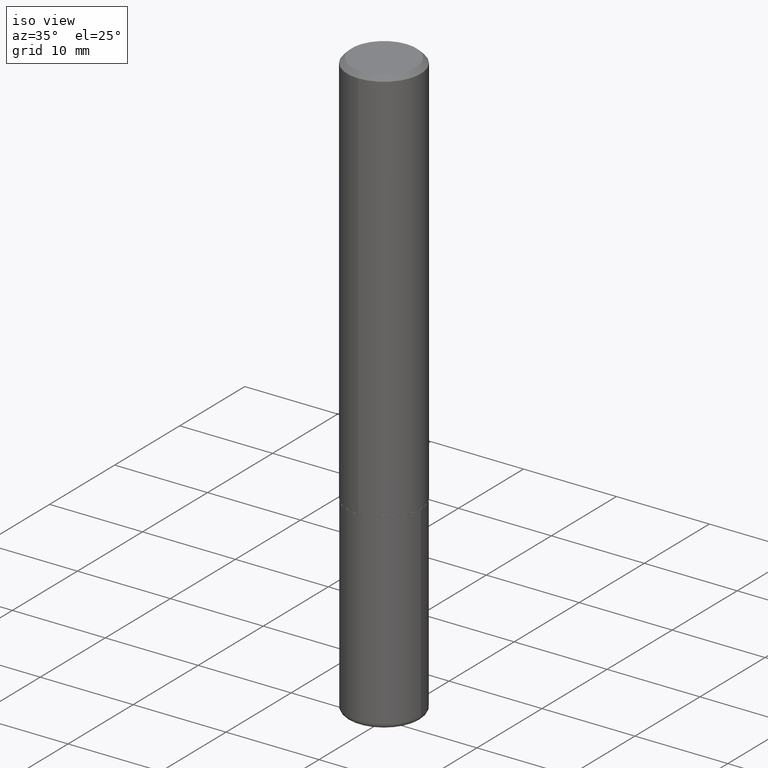
[diagram: clean part render]
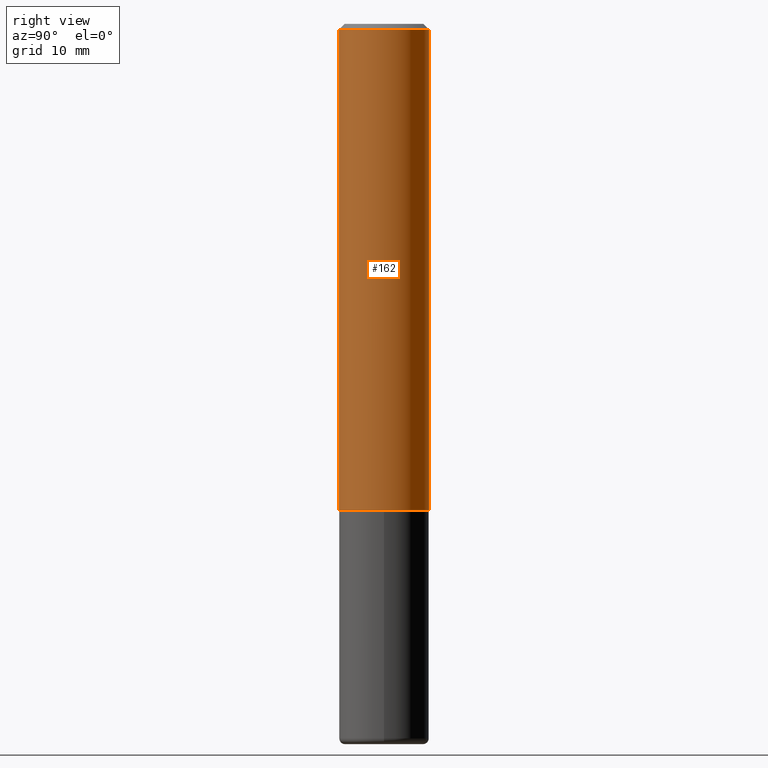
[diagram: tour spotlight — one face highlighted and labeled with its STEP entity id]
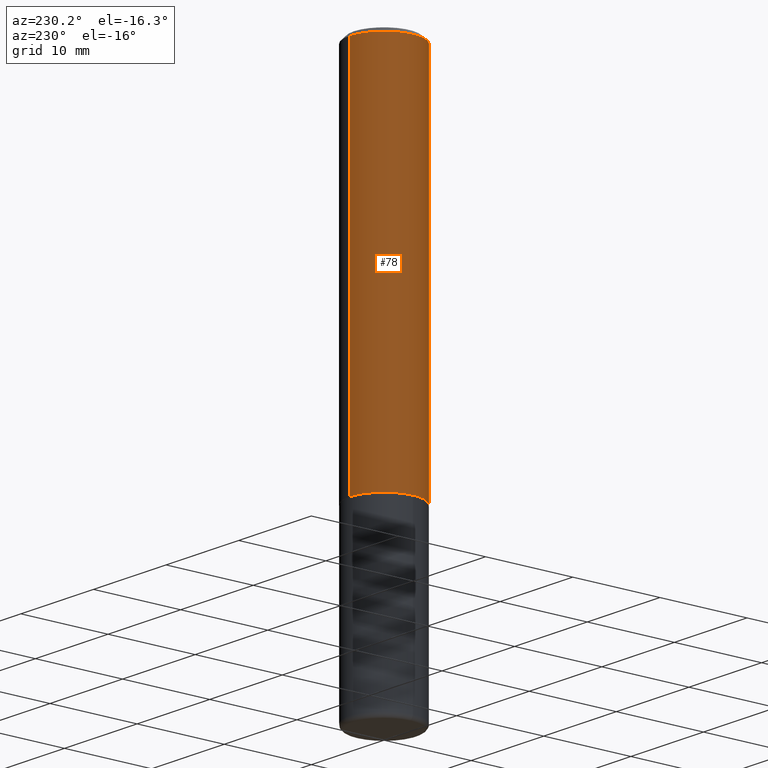
[diagram: tour spotlight — one face highlighted and labeled with its STEP entity id]
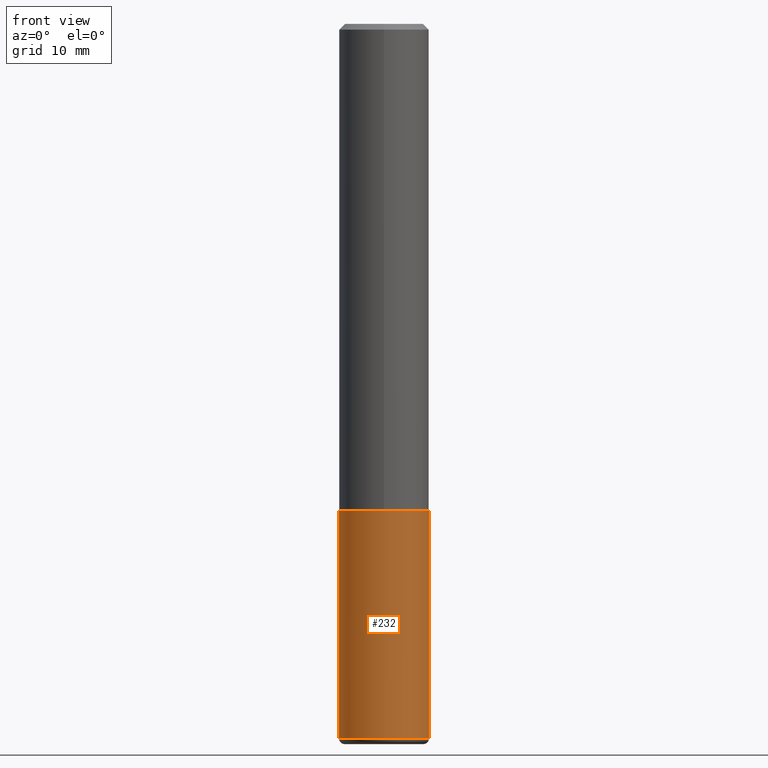
[diagram: tour spotlight — one face highlighted and labeled with its STEP entity id]
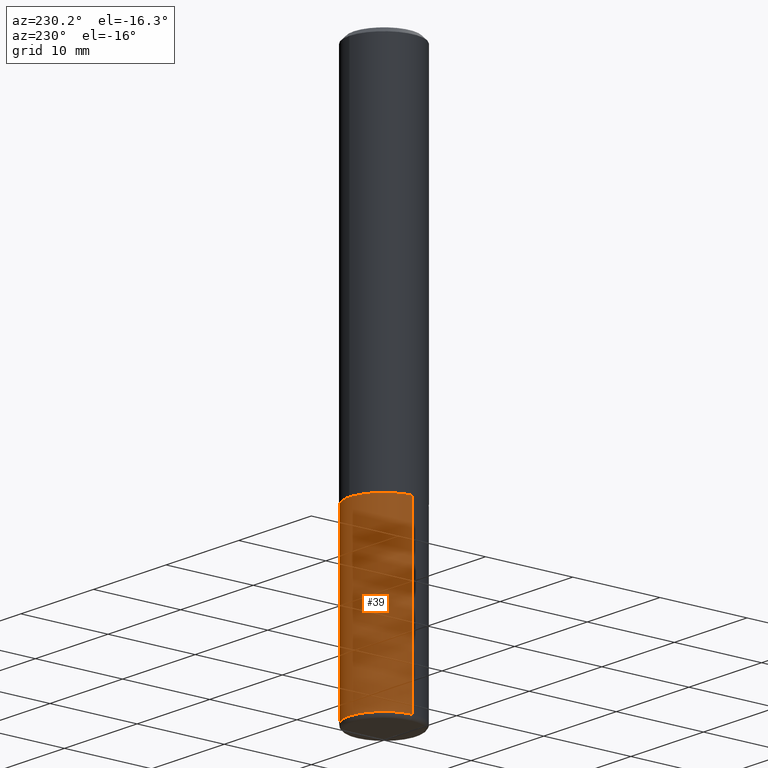
[diagram: tour spotlight — one face highlighted and labeled with its STEP entity id]
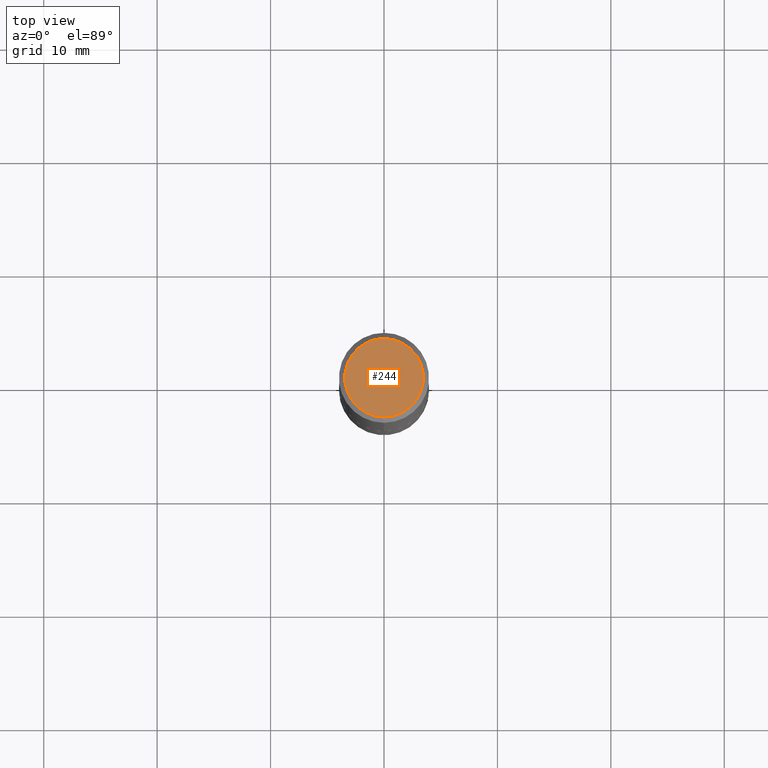
[diagram: tour spotlight — one face highlighted and labeled with its STEP entity id]
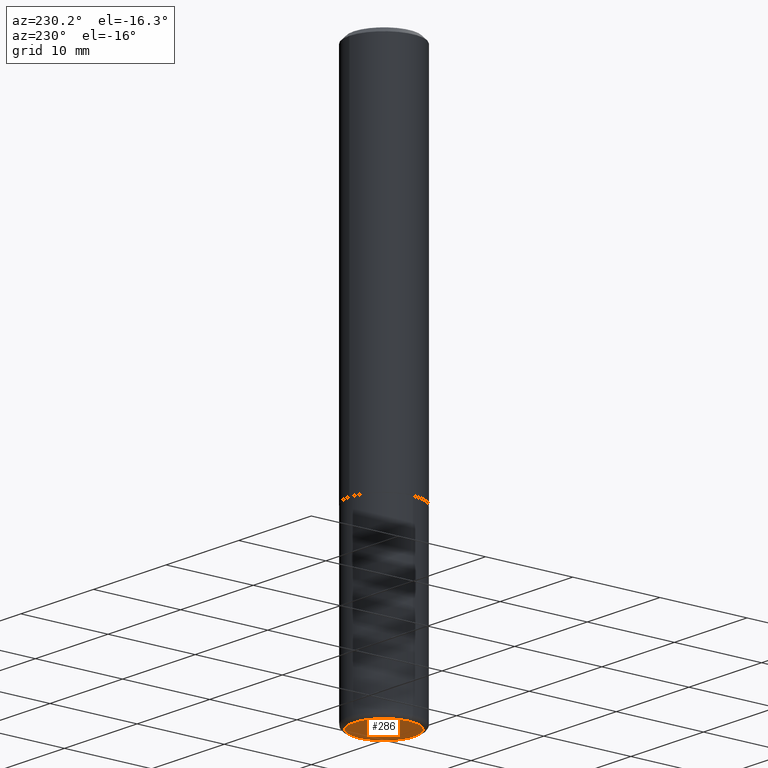
[diagram: tour spotlight — one face highlighted and labeled with its STEP entity id]
A machine part: a face-by-face anatomy tour. The part has 14 B-rep faces; the first image is the clean iso view, then the 6 largest visible faces are spotlighted one at a time (largest first), each with its STEP entity span.

Face 1 — right view, entity #162. In plain terms, the highlighted cylindrical surface (partial cylindrical patch) has radius 3.9688 mm, axis along (-0, 0, 1).
Definition (entity closure, byte-faithful):
#1 = FACE_OUTER_BOUND ( 'NONE', #315, .T. ) ;
#3 = EDGE_CURVE ( 'NONE', #94, #356, #109, .T. ) ;
#9 = DIRECTION ( 'NONE',  ( -2.445045230849958565E-29, 3.492087922831532098E-15, 1.000000000000000000 ) ) ;
#17 = DIRECTION ( 'NONE',  ( -6.982962677686265922E-15, -1.000000000000000000, 3.496765431890251792E-15 ) ) ;
#37 = VECTOR ( 'NONE', #339, 39.37007874015748143 ) ;
#43 = CARTESIAN_POINT ( 'NONE',  ( 1.110223024625157132E-15, 0.1562500000000001110, -5.456387379424272725E-16 ) ) ;
#51 = EDGE_CURVE ( 'NONE', #354, #94, #130, .T. ) ;
#54 = AXIS2_PLACEMENT_3D ( 'NONE', #335, #304, #17 ) ;
#57 = DIRECTION ( 'NONE',  ( -2.445045230849958565E-29, 3.492087922831531704E-15, 1.000000000000000000 ) ) ;
#86 = EDGE_CURVE ( 'NONE', #354, #205, #404, .T. ) ;
#88 = VECTOR ( 'NONE', #9, 39.37007874015748143 ) ;
#94 = VERTEX_POINT ( 'NONE', #398 ) ;
#104 = EDGE_CURVE ( 'NONE', #205, #356, #183, .T. ) ;
#109 = LINE ( 'NONE', #43, #37 ) ;
#130 = CIRCLE ( 'NONE', #54, 0.1562500000000002220 ) ;
#141 = ORIENTED_EDGE ( 'NONE', *, *, #51, .T. ) ;
#162 = ADVANCED_FACE ( 'NONE', ( #1 ), #284, .T. ) ;
#183 = CIRCLE ( 'NONE', #362, 0.1562500000000000000 ) ;
#198 = ORIENTED_EDGE ( 'NONE', *, *, #86, .F. ) ;
#205 = VERTEX_POINT ( 'NONE', #387 ) ;
#208 = ORIENTED_EDGE ( 'NONE', *, *, #104, .F. ) ;
#219 = DIRECTION ( 'NONE',  ( -2.445045230849958565E-29, 3.492087922831531704E-15, 1.000000000000000000 ) ) ;
#238 = CARTESIAN_POINT ( 'NONE',  ( 1.091087918388479568E-15, 0.1562499999999999445, -0.02000000000000057981 ) ) ;
#249 = CARTESIAN_POINT ( 'NONE',  ( -1.091087918388439336E-15, -0.1562500000000061062, -1.686999999999999611 ) ) ;
#264 = CARTESIAN_POINT ( 'NONE',  ( -1.091087918388479765E-15, -0.1562500000000001110, 5.456387379424272725E-16 ) ) ;
#284 = CYLINDRICAL_SURFACE ( 'NONE', #397, 0.1562500000000001110 ) ;
#292 = DIRECTION ( 'NONE',  ( -6.982962677686265133E-15, -1.000000000000000000, 3.496765431890256920E-15 ) ) ;
#304 = DIRECTION ( 'NONE',  ( -2.445045230849958565E-29, 3.492087922831531704E-15, 1.000000000000000000 ) ) ;
#315 = EDGE_LOOP ( 'NONE', ( #141, #392, #208, #198 ) ) ;
#331 = CARTESIAN_POINT ( 'NONE',  ( 4.890090461699924977E-31, -6.984175845663074797E-17, -0.02000000000000003511 ) ) ;
#335 = CARTESIAN_POINT ( 'NONE',  ( 4.124791304443880664E-29, -5.891152325816794336E-15, -1.687000000000000055 ) ) ;
#339 = DIRECTION ( 'NONE',  ( -2.445045230849958565E-29, 3.492087922831532098E-15, 1.000000000000000000 ) ) ;
#345 = DIRECTION ( 'NONE',  ( -6.982962677686265922E-15, -1.000000000000000000, 3.492087922831532098E-15 ) ) ;
#354 = VERTEX_POINT ( 'NONE', #249 ) ;
#356 = VERTEX_POINT ( 'NONE', #238 ) ;
#362 = AXIS2_PLACEMENT_3D ( 'NONE', #331, #57, #292 ) ;
#387 = CARTESIAN_POINT ( 'NONE',  ( -1.071952812151801215E-15, -0.1562500000000000833, -0.01999999999999948694 ) ) ;
#392 = ORIENTED_EDGE ( 'NONE', *, *, #3, .T. ) ;
#397 = AXIS2_PLACEMENT_3D ( 'NONE', #414, #219, #345 ) ;
#398 = CARTESIAN_POINT ( 'NONE',  ( 1.110223024625178234E-15, 0.1562499999999943101, -1.687000000000000499 ) ) ;
#404 = LINE ( 'NONE', #264, #88 ) ;
#414 = CARTESIAN_POINT ( 'NONE',  ( 0.000000000000000000, 0.000000000000000000, 0.000000000000000000 ) ) ;

Face 2 — auxiliary view, entity #78. In plain terms, the highlighted cylindrical surface (partial cylindrical patch) has radius 3.9688 mm, axis along (-0, 0, 1).
Definition (entity closure, byte-faithful):
#3 = EDGE_CURVE ( 'NONE', #94, #356, #109, .T. ) ;
#9 = DIRECTION ( 'NONE',  ( -2.445045230849958565E-29, 3.492087922831532098E-15, 1.000000000000000000 ) ) ;
#13 = CARTESIAN_POINT ( 'NONE',  ( 4.890090461699924977E-31, -6.984175845663074797E-17, -0.02000000000000003511 ) ) ;
#32 = DIRECTION ( 'NONE',  ( -2.445045230849958565E-29, 3.492087922831531704E-15, 1.000000000000000000 ) ) ;
#34 = ORIENTED_EDGE ( 'NONE', *, *, #86, .T. ) ;
#37 = VECTOR ( 'NONE', #339, 39.37007874015748143 ) ;
#43 = CARTESIAN_POINT ( 'NONE',  ( 1.110223024625157132E-15, 0.1562500000000001110, -5.456387379424272725E-16 ) ) ;
#60 = DIRECTION ( 'NONE',  ( -6.982962677686265922E-15, -1.000000000000000000, 3.496765431890251792E-15 ) ) ;
#78 = ADVANCED_FACE ( 'NONE', ( #168 ), #143, .T. ) ;
#86 = EDGE_CURVE ( 'NONE', #354, #205, #404, .T. ) ;
#88 = VECTOR ( 'NONE', #9, 39.37007874015748143 ) ;
#89 = DIRECTION ( 'NONE',  ( -2.445045230849958565E-29, 3.492087922831531704E-15, 1.000000000000000000 ) ) ;
#94 = VERTEX_POINT ( 'NONE', #398 ) ;
#96 = ORIENTED_EDGE ( 'NONE', *, *, #180, .T. ) ;
#109 = LINE ( 'NONE', #43, #37 ) ;
#119 = CARTESIAN_POINT ( 'NONE',  ( 0.000000000000000000, 0.000000000000000000, 0.000000000000000000 ) ) ;
#127 = EDGE_CURVE ( 'NONE', #356, #205, #233, .T. ) ;
#129 = ORIENTED_EDGE ( 'NONE', *, *, #127, .F. ) ;
#143 = CYLINDRICAL_SURFACE ( 'NONE', #349, 0.1562500000000001110 ) ;
#168 = FACE_OUTER_BOUND ( 'NONE', #223, .T. ) ;
#180 = EDGE_CURVE ( 'NONE', #94, #354, #416, .T. ) ;
#187 = DIRECTION ( 'NONE',  ( -2.445045230849958565E-29, 3.492087922831531704E-15, 1.000000000000000000 ) ) ;
#205 = VERTEX_POINT ( 'NONE', #387 ) ;
#211 = AXIS2_PLACEMENT_3D ( 'NONE', #390, #187, #60 ) ;
#223 = EDGE_LOOP ( 'NONE', ( #359, #96, #34, #129 ) ) ;
#233 = CIRCLE ( 'NONE', #282, 0.1562500000000000000 ) ;
#238 = CARTESIAN_POINT ( 'NONE',  ( 1.091087918388479568E-15, 0.1562499999999999445, -0.02000000000000057981 ) ) ;
#249 = CARTESIAN_POINT ( 'NONE',  ( -1.091087918388439336E-15, -0.1562500000000061062, -1.686999999999999611 ) ) ;
#264 = CARTESIAN_POINT ( 'NONE',  ( -1.091087918388479765E-15, -0.1562500000000001110, 5.456387379424272725E-16 ) ) ;
#282 = AXIS2_PLACEMENT_3D ( 'NONE', #13, #32, #415 ) ;
#339 = DIRECTION ( 'NONE',  ( -2.445045230849958565E-29, 3.492087922831532098E-15, 1.000000000000000000 ) ) ;
#349 = AXIS2_PLACEMENT_3D ( 'NONE', #119, #89, #376 ) ;
#354 = VERTEX_POINT ( 'NONE', #249 ) ;
#356 = VERTEX_POINT ( 'NONE', #238 ) ;
#359 = ORIENTED_EDGE ( 'NONE', *, *, #3, .F. ) ;
#376 = DIRECTION ( 'NONE',  ( -6.982962677686265922E-15, -1.000000000000000000, 3.492087922831532098E-15 ) ) ;
#387 = CARTESIAN_POINT ( 'NONE',  ( -1.071952812151801215E-15, -0.1562500000000000833, -0.01999999999999948694 ) ) ;
#390 = CARTESIAN_POINT ( 'NONE',  ( 4.124791304443880664E-29, -5.891152325816794336E-15, -1.687000000000000055 ) ) ;
#398 = CARTESIAN_POINT ( 'NONE',  ( 1.110223024625178234E-15, 0.1562499999999943101, -1.687000000000000499 ) ) ;
#404 = LINE ( 'NONE', #264, #88 ) ;
#415 = DIRECTION ( 'NONE',  ( -6.982962677686265133E-15, -1.000000000000000000, 3.496765431890256920E-15 ) ) ;
#416 = CIRCLE ( 'NONE', #211, 0.1562500000000002220 ) ;

Face 3 — front view, entity #232. In plain terms, the highlighted cylindrical surface (partial cylindrical patch) has radius 3.9688 mm, axis along (-0, 0, 1).
Definition (entity closure, byte-faithful):
#2 = EDGE_LOOP ( 'NONE', ( #241, #69, #174, #156 ) ) ;
#24 = CARTESIAN_POINT ( 'NONE',  ( -0.1562500000000000833, -7.548650695705845104E-15, -2.480000000000000426 ) ) ;
#26 = EDGE_CURVE ( 'NONE', #134, #170, #325, .T. ) ;
#50 = DIRECTION ( 'NONE',  ( 1.000000000000000000, -6.982962677686262766E-15, 0.000000000000000000 ) ) ;
#69 = ORIENTED_EDGE ( 'NONE', *, *, #26, .T. ) ;
#76 = EDGE_CURVE ( 'NONE', #170, #418, #408, .T. ) ;
#82 = CARTESIAN_POINT ( 'NONE',  ( 4.127951344840510809E-29, -5.893620499967230340E-15, -1.688000000000000167 ) ) ;
#85 = DIRECTION ( 'NONE',  ( -2.445468806185136597E-29, 3.491481338843145583E-15, 1.000000000000000000 ) ) ;
#91 = DIRECTION ( 'NONE',  ( 1.000000000000000000, -6.982962677686266711E-15, 4.876176775795936353E-29 ) ) ;
#102 = CARTESIAN_POINT ( 'NONE',  ( 0.1562500000000000833, -9.749961638719480029E-15, -2.480000000000000426 ) ) ;
#103 = CYLINDRICAL_SURFACE ( 'NONE', #291, 0.1562500000000000000 ) ;
#113 = DIRECTION ( 'NONE',  ( -2.445468806185136877E-29, 3.491481338843145188E-15, 1.000000000000000000 ) ) ;
#120 = DIRECTION ( 'NONE',  ( -2.445468806185136877E-29, 3.491481338843145188E-15, 1.000000000000000000 ) ) ;
#134 = VERTEX_POINT ( 'NONE', #24 ) ;
#144 = CARTESIAN_POINT ( 'NONE',  ( -0.1562500000000000000, 1.110223024625156540E-15, -7.685836078523291160E-30 ) ) ;
#156 = ORIENTED_EDGE ( 'NONE', *, *, #364, .F. ) ;
#170 = VERTEX_POINT ( 'NONE', #102 ) ;
#174 = ORIENTED_EDGE ( 'NONE', *, *, #76, .T. ) ;
#186 = CARTESIAN_POINT ( 'NONE',  ( 0.000000000000000000, 0.000000000000000000, 0.000000000000000000 ) ) ;
#199 = CARTESIAN_POINT ( 'NONE',  ( 6.064762639339139522E-29, -8.658873720331001644E-15, -2.480000000000000426 ) ) ;
#200 = AXIS2_PLACEMENT_3D ( 'NONE', #82, #85, #245 ) ;
#206 = DIRECTION ( 'NONE',  ( -2.445468806185136597E-29, 3.491481338843145583E-15, 1.000000000000000000 ) ) ;
#212 = VECTOR ( 'NONE', #120, 39.37007874015748143 ) ;
#232 = ADVANCED_FACE ( 'NONE', ( #318 ), #103, .T. ) ;
#237 = CARTESIAN_POINT ( 'NONE',  ( 0.1562500000000000000, -1.091087918388479174E-15, 7.619026212181150377E-30 ) ) ;
#241 = ORIENTED_EDGE ( 'NONE', *, *, #329, .F. ) ;
#245 = DIRECTION ( 'NONE',  ( 1.000000000000000000, -6.982962677686269077E-15, 0.000000000000000000 ) ) ;
#262 = AXIS2_PLACEMENT_3D ( 'NONE', #199, #206, #50 ) ;
#277 = VECTOR ( 'NONE', #113, 39.37007874015748143 ) ;
#291 = AXIS2_PLACEMENT_3D ( 'NONE', #186, #323, #91 ) ;
#312 = CIRCLE ( 'NONE', #200, 0.1562500000000000000 ) ;
#318 = FACE_OUTER_BOUND ( 'NONE', #2, .T. ) ;
#323 = DIRECTION ( 'NONE',  ( -2.445468806185136597E-29, 3.491481338843145583E-15, 1.000000000000000000 ) ) ;
#325 = CIRCLE ( 'NONE', #262, 0.1562500000000000000 ) ;
#329 = EDGE_CURVE ( 'NONE', #134, #346, #342, .T. ) ;
#342 = LINE ( 'NONE', #144, #212 ) ;
#346 = VERTEX_POINT ( 'NONE', #400 ) ;
#364 = EDGE_CURVE ( 'NONE', #346, #418, #312, .T. ) ;
#381 = CARTESIAN_POINT ( 'NONE',  ( 0.1562500000000000000, -6.984708418355709513E-15, -1.688000000000000167 ) ) ;
#400 = CARTESIAN_POINT ( 'NONE',  ( -0.1562500000000000000, -6.166024085523959846E-15, -1.688000000000000167 ) ) ;
#408 = LINE ( 'NONE', #237, #277 ) ;
#418 = VERTEX_POINT ( 'NONE', #381 ) ;

Face 4 — auxiliary view, entity #39. In plain terms, the highlighted cylindrical surface (partial cylindrical patch) has radius 3.9688 mm, axis along (-0, 0, 1).
Definition (entity closure, byte-faithful):
#10 = CARTESIAN_POINT ( 'NONE',  ( 4.127951344840510809E-29, -5.893620499967230340E-15, -1.688000000000000167 ) ) ;
#24 = CARTESIAN_POINT ( 'NONE',  ( -0.1562500000000000833, -7.548650695705845104E-15, -2.480000000000000426 ) ) ;
#39 = ADVANCED_FACE ( 'NONE', ( #56 ), #110, .T. ) ;
#46 = EDGE_CURVE ( 'NONE', #170, #134, #310, .T. ) ;
#49 = DIRECTION ( 'NONE',  ( 1.000000000000000000, -6.982962677686269077E-15, 0.000000000000000000 ) ) ;
#56 = FACE_OUTER_BOUND ( 'NONE', #160, .T. ) ;
#76 = EDGE_CURVE ( 'NONE', #170, #418, #408, .T. ) ;
#102 = CARTESIAN_POINT ( 'NONE',  ( 0.1562500000000000833, -9.749961638719480029E-15, -2.480000000000000426 ) ) ;
#110 = CYLINDRICAL_SURFACE ( 'NONE', #224, 0.1562500000000000000 ) ;
#113 = DIRECTION ( 'NONE',  ( -2.445468806185136877E-29, 3.491481338843145188E-15, 1.000000000000000000 ) ) ;
#120 = DIRECTION ( 'NONE',  ( -2.445468806185136877E-29, 3.491481338843145188E-15, 1.000000000000000000 ) ) ;
#134 = VERTEX_POINT ( 'NONE', #24 ) ;
#144 = CARTESIAN_POINT ( 'NONE',  ( -0.1562500000000000000, 1.110223024625156540E-15, -7.685836078523291160E-30 ) ) ;
#160 = EDGE_LOOP ( 'NONE', ( #372, #406, #217, #386 ) ) ;
#170 = VERTEX_POINT ( 'NONE', #102 ) ;
#175 = DIRECTION ( 'NONE',  ( -2.445468806185136597E-29, 3.491481338843145583E-15, 1.000000000000000000 ) ) ;
#178 = DIRECTION ( 'NONE',  ( -2.445468806185136597E-29, 3.491481338843145583E-15, 1.000000000000000000 ) ) ;
#203 = DIRECTION ( 'NONE',  ( 1.000000000000000000, -6.982962677686266711E-15, 4.876176775795936353E-29 ) ) ;
#212 = VECTOR ( 'NONE', #120, 39.37007874015748143 ) ;
#217 = ORIENTED_EDGE ( 'NONE', *, *, #288, .F. ) ;
#224 = AXIS2_PLACEMENT_3D ( 'NONE', #399, #178, #203 ) ;
#235 = DIRECTION ( 'NONE',  ( 1.000000000000000000, -6.982962677686262766E-15, 0.000000000000000000 ) ) ;
#237 = CARTESIAN_POINT ( 'NONE',  ( 0.1562500000000000000, -1.091087918388479174E-15, 7.619026212181150377E-30 ) ) ;
#260 = CIRCLE ( 'NONE', #352, 0.1562500000000000000 ) ;
#277 = VECTOR ( 'NONE', #113, 39.37007874015748143 ) ;
#288 = EDGE_CURVE ( 'NONE', #418, #346, #260, .T. ) ;
#307 = DIRECTION ( 'NONE',  ( -2.445468806185136597E-29, 3.491481338843145583E-15, 1.000000000000000000 ) ) ;
#310 = CIRCLE ( 'NONE', #368, 0.1562500000000000000 ) ;
#329 = EDGE_CURVE ( 'NONE', #134, #346, #342, .T. ) ;
#342 = LINE ( 'NONE', #144, #212 ) ;
#346 = VERTEX_POINT ( 'NONE', #400 ) ;
#352 = AXIS2_PLACEMENT_3D ( 'NONE', #10, #307, #49 ) ;
#368 = AXIS2_PLACEMENT_3D ( 'NONE', #380, #175, #235 ) ;
#372 = ORIENTED_EDGE ( 'NONE', *, *, #46, .T. ) ;
#380 = CARTESIAN_POINT ( 'NONE',  ( 6.064762639339139522E-29, -8.658873720331001644E-15, -2.480000000000000426 ) ) ;
#381 = CARTESIAN_POINT ( 'NONE',  ( 0.1562500000000000000, -6.984708418355709513E-15, -1.688000000000000167 ) ) ;
#386 = ORIENTED_EDGE ( 'NONE', *, *, #76, .F. ) ;
#399 = CARTESIAN_POINT ( 'NONE',  ( 0.000000000000000000, 0.000000000000000000, 0.000000000000000000 ) ) ;
#400 = CARTESIAN_POINT ( 'NONE',  ( -0.1562500000000000000, -6.166024085523959846E-15, -1.688000000000000167 ) ) ;
#406 = ORIENTED_EDGE ( 'NONE', *, *, #329, .T. ) ;
#408 = LINE ( 'NONE', #237, #277 ) ;
#418 = VERTEX_POINT ( 'NONE', #381 ) ;

Face 5 — top view, entity #244. In plain terms, the highlighted planar face has unit normal (0, -0, -1).
Definition (entity closure, byte-faithful):
#7 = CARTESIAN_POINT ( 'NONE',  ( 1.250383974604437494E-45, -1.785836401521438243E-31, -5.113950281278734949E-17 ) ) ;
#14 = CARTESIAN_POINT ( 'NONE',  ( 1.250383974604437494E-45, -1.785836401521438243E-31, -5.113950281278734949E-17 ) ) ;
#36 = PLANE ( 'NONE',  #71 ) ;
#41 = AXIS2_PLACEMENT_3D ( 'NONE', #14, #124, #375 ) ;
#65 = FACE_OUTER_BOUND ( 'NONE', #377, .T. ) ;
#71 = AXIS2_PLACEMENT_3D ( 'NONE', #272, #161, #265 ) ;
#74 = CIRCLE ( 'NONE', #41, 0.1362500000000000933 ) ;
#108 = EDGE_CURVE ( 'NONE', #367, #125, #176, .T. ) ;
#124 = DIRECTION ( 'NONE',  ( -2.445045230849958565E-29, 3.492087922831531704E-15, 1.000000000000000000 ) ) ;
#125 = VERTEX_POINT ( 'NONE', #297 ) ;
#161 = DIRECTION ( 'NONE',  ( 2.445045230849957724E-29, -3.492087922831532098E-15, -1.000000000000000000 ) ) ;
#176 = CIRCLE ( 'NONE', #412, 0.1362500000000000933 ) ;
#179 = CARTESIAN_POINT ( 'NONE',  ( -1.003347832174086278E-15, -0.1362500000000000933, 4.246574766730091504E-16 ) ) ;
#192 = ORIENTED_EDGE ( 'NONE', *, *, #313, .T. ) ;
#244 = ADVANCED_FACE ( 'NONE', ( #65 ), #36, .F. ) ;
#265 = DIRECTION ( 'NONE',  ( 6.982962677686265922E-15, 1.000000000000000000, -3.492087922831532098E-15 ) ) ;
#268 = DIRECTION ( 'NONE',  ( -6.982962677686265922E-15, -1.000000000000000000, 3.492087922831531704E-15 ) ) ;
#272 = CARTESIAN_POINT ( 'NONE',  ( 9.514286648347543521E-16, 0.1362500000000000933, -5.013667308921901438E-16 ) ) ;
#297 = CARTESIAN_POINT ( 'NONE',  ( 1.021258291611616861E-15, 0.1362500000000000933, -5.269364822985837754E-16 ) ) ;
#313 = EDGE_CURVE ( 'NONE', #125, #367, #74, .T. ) ;
#328 = DIRECTION ( 'NONE',  ( -2.445045230849958565E-29, 3.492087922831531704E-15, 1.000000000000000000 ) ) ;
#367 = VERTEX_POINT ( 'NONE', #179 ) ;
#375 = DIRECTION ( 'NONE',  ( -6.982962677686265922E-15, -1.000000000000000000, 3.492087922831531704E-15 ) ) ;
#377 = EDGE_LOOP ( 'NONE', ( #192, #388 ) ) ;
#388 = ORIENTED_EDGE ( 'NONE', *, *, #108, .T. ) ;
#412 = AXIS2_PLACEMENT_3D ( 'NONE', #7, #328, #268 ) ;

Face 6 — auxiliary view, entity #286. In plain terms, the highlighted planar face has unit normal (0, -0, -1).
Definition (entity closure, byte-faithful):
#22 = DIRECTION ( 'NONE',  ( 2.438088387897960049E-29, -3.491481338843145188E-15, -1.000000000000000000 ) ) ;
#30 = EDGE_LOOP ( 'NONE', ( #101, #66 ) ) ;
#66 = ORIENTED_EDGE ( 'NONE', *, *, #373, .F. ) ;
#101 = ORIENTED_EDGE ( 'NONE', *, *, #347, .F. ) ;
#115 = VERTEX_POINT ( 'NONE', #370 ) ;
#151 = DIRECTION ( 'NONE',  ( 1.000000000000000000, -6.982962677686273021E-15, 0.000000000000000000 ) ) ;
#166 = CIRCLE ( 'NONE', #338, 0.1362500000000000100 ) ;
#191 = AXIS2_PLACEMENT_3D ( 'NONE', #276, #273, #151 ) ;
#204 = FACE_OUTER_BOUND ( 'NONE', #30, .T. ) ;
#207 = DIRECTION ( 'NONE',  ( -2.445468806185136597E-29, 3.491481338843145583E-15, 1.000000000000000000 ) ) ;
#215 = CARTESIAN_POINT ( 'NONE',  ( -8.868390233884125479E-30, -1.875383359908681760E-14, -2.500000000000000000 ) ) ;
#240 = DIRECTION ( 'NONE',  ( -1.000000000000000000, 6.982962677686265922E-15, -4.876176775795935793E-29 ) ) ;
#269 = CARTESIAN_POINT ( 'NONE',  ( -0.1362500000000000100, -7.654619782670286835E-15, -2.500000000000000444 ) ) ;
#273 = DIRECTION ( 'NONE',  ( -2.445468806185136597E-29, 3.491481338843145583E-15, 1.000000000000000000 ) ) ;
#276 = CARTESIAN_POINT ( 'NONE',  ( 6.113672015462842613E-29, -8.728703347107866520E-15, -2.500000000000000444 ) ) ;
#286 = ADVANCED_FACE ( 'NONE', ( #204 ), #301, .T. ) ;
#301 = PLANE ( 'NONE',  #360 ) ;
#321 = CIRCLE ( 'NONE', #191, 0.1362500000000000100 ) ;
#336 = DIRECTION ( 'NONE',  ( 1.000000000000000000, -6.982962677686273021E-15, 0.000000000000000000 ) ) ;
#338 = AXIS2_PLACEMENT_3D ( 'NONE', #409, #207, #336 ) ;
#343 = VERTEX_POINT ( 'NONE', #269 ) ;
#347 = EDGE_CURVE ( 'NONE', #115, #343, #321, .T. ) ;
#360 = AXIS2_PLACEMENT_3D ( 'NONE', #215, #22, #240 ) ;
#370 = CARTESIAN_POINT ( 'NONE',  ( 0.1362500000000000100, -9.680132011942621464E-15, -2.500000000000000444 ) ) ;
#373 = EDGE_CURVE ( 'NONE', #343, #115, #166, .T. ) ;
#409 = CARTESIAN_POINT ( 'NONE',  ( 6.113672015462842613E-29, -8.728703347107866520E-15, -2.500000000000000444 ) ) ;